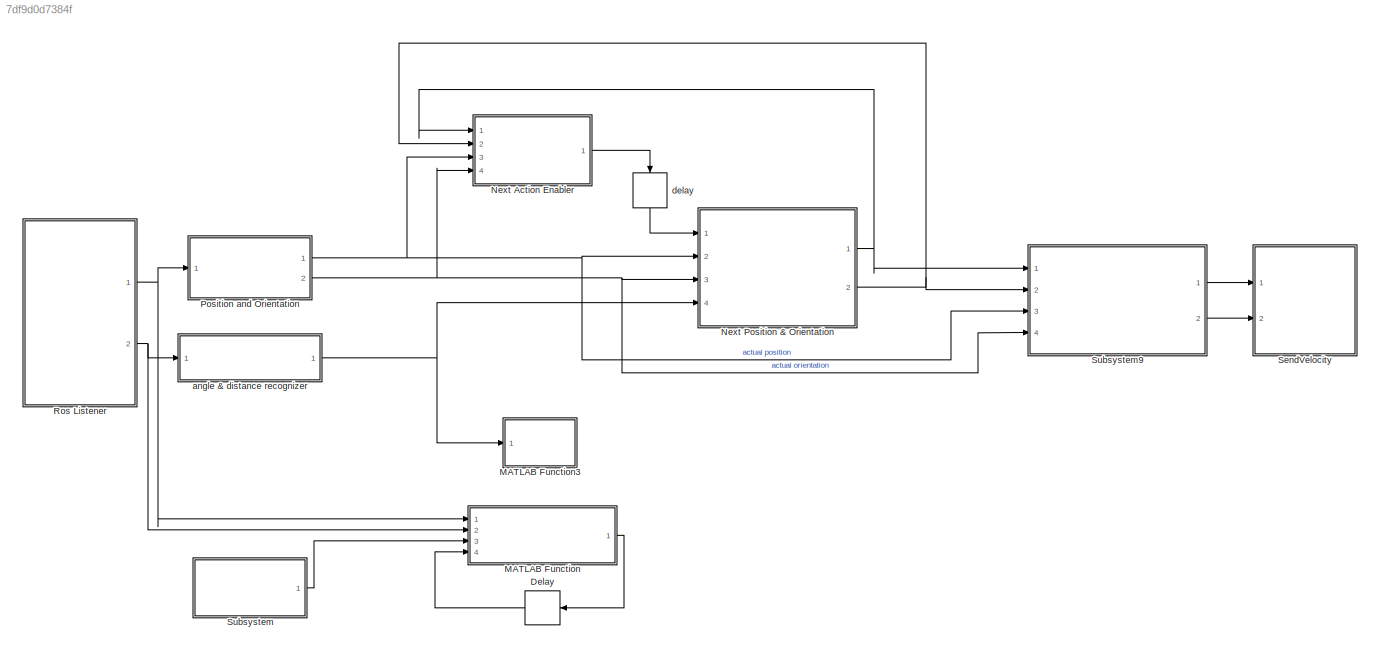
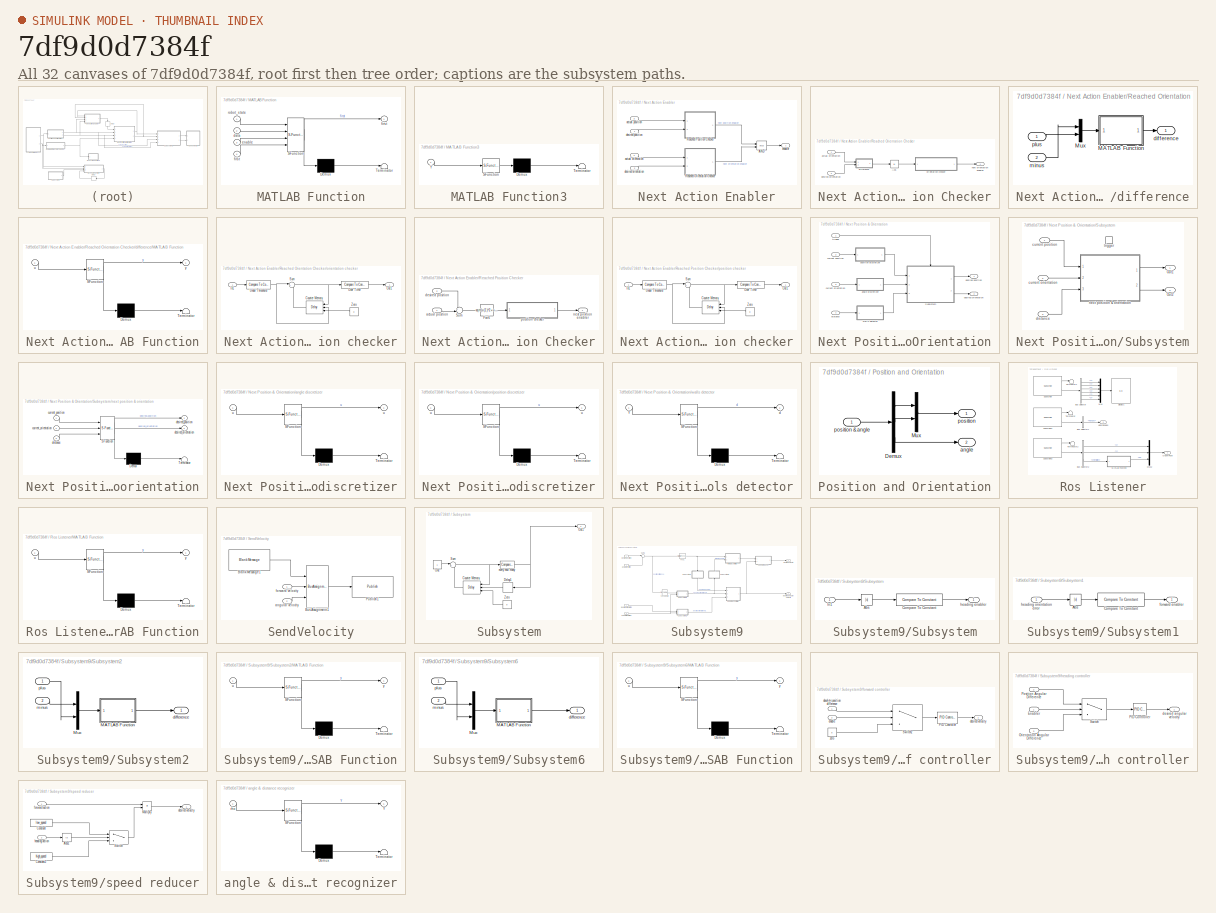
[diagram: thumbnail index - all 32 canvases of the model, root first then tree order]
MODEL slx_7df9d0d7384f
KIND model
CONFIG AbsTol = auto
CONFIG EnableMultiTasking = off
CONFIG FixedStep = 0.1
CONFIG MaxStep = auto
CONFIG MinStep = auto
CONFIG RelTol = 1e-3
CONFIG SampleTimeConstraint = Unconstrained
CONFIG Solver = FixedStepDiscrete
CONFIG SolverName = FixedStepDiscrete
CONFIG StartTime = 0.0
CONFIG StopTime = inf
WORKSPACE source: MAT-file member
WORKSPACE SL_ROS_VariableLengthArrays_MaxSizes: struct (value not decoded)
BLOCK [Delay] Delay
  DelayLength = 1
  InitialCondition = true
  InputPortMap = u0
  Ports = [1, 1]
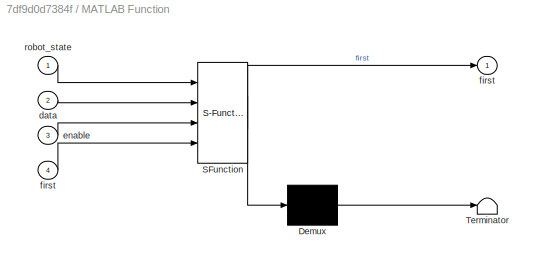
BLOCK [SubSystem] MATLAB Function
  ErrorFcn = Stateflow.Translate.translate
  PermitHierarchicalResolution = ExplicitOnly
  Ports = [4, 1]
  RequestExecContextInheritance = off
  SFBlockType = MATLAB Function
  TreatAsAtomicUnit = on
BLOCK [Demux] MATLAB Function/ Demux 
  Outputs = 1
  Ports = [1, 1]
BLOCK [S-Function] MATLAB Function/ SFunction 
  EnableBusSupport = on
  FunctionName = sf_sfun
  PortCounts = [4 2]
  Ports = [4, 2]
  SFcnIsStateOwnerBlock = off
  SFunctionDeploymentMode = off
  Tag = Stateflow S-Function teseo 2
BLOCK [Terminator] MATLAB Function/ Terminator 
BLOCK [Inport] MATLAB Function/data
  IconDisplay = Port number
  Port = 2
BLOCK [Inport] MATLAB Function/enable
  IconDisplay = Port number
  Port = 3
BLOCK [Outport] MATLAB Function/first
  IconDisplay = Port number
BLOCK [Inport] MATLAB Function/first 
  IconDisplay = Port number
  Port = 4
BLOCK [Inport] MATLAB Function/robot_state
  IconDisplay = Port number
BLOCK [SubSystem] MATLAB Function3
  Commented = on
  ErrorFcn = Stateflow.Translate.translate
  PermitHierarchicalResolution = ExplicitOnly
  Ports = [1]
  RequestExecContextInheritance = off
  SFBlockType = MATLAB Function
  TreatAsAtomicUnit = on
BLOCK [Demux] MATLAB Function3/ Demux 
  Outputs = 1
  Ports = [1, 1]
BLOCK [S-Function] MATLAB Function3/ SFunction 
  EnableBusSupport = on
  FunctionName = sf_sfun
  PortCounts = [1 1]
  Ports = [1, 1]
  SFcnIsStateOwnerBlock = off
  SFunctionDeploymentMode = off
  Tag = Stateflow S-Function teseo 9
BLOCK [Terminator] MATLAB Function3/ Terminator 
BLOCK [Inport] MATLAB Function3/Y
  IconDisplay = Port number
BLOCK [SubSystem] Next Action Enabler
  Ports = [4, 1]
  RequestExecContextInheritance = off
BLOCK [Logic] Next Action Enabler/AND
  AllPortsSameDT = off
  IconShape = distinctive
  OutDataTypeStr = boolean
  Ports = [2, 1]
BLOCK [SubSystem] Next Action Enabler/Reached Orientation Checker
  Ports = [2, 1]
  RequestExecContextInheritance = off
BLOCK [Abs] Next Action Enabler/Reached Orientation Checker/Abs
  SaturateOnIntegerOverflow = off
BLOCK [Inport] Next Action Enabler/Reached Orientation Checker/actual orientation
  IconDisplay = Port number
BLOCK [Inport] Next Action Enabler/Reached Orientation Checker/desired orientation
  IconDisplay = Port number
  Port = 2
BLOCK [SubSystem] Next Action Enabler/Reached Orientation Checker/difference
  Ports = [2, 1]
  RequestExecContextInheritance = off
BLOCK [SubSystem] Next Action Enabler/Reached Orientation Checker/difference/MATLAB Function
  ErrorFcn = Stateflow.Translate.translate
  PermitHierarchicalResolution = ExplicitOnly
  Ports = [1, 1]
  RequestExecContextInheritance = off
  SFBlockType = MATLAB Function
  TreatAsAtomicUnit = on
BLOCK [Demux] Next Action Enabler/Reached Orientation Checker/difference/MATLAB Function/ Demux 
  Outputs = 1
  Ports = [1, 1]
BLOCK [S-Function] Next Action Enabler/Reached Orientation Checker/difference/MATLAB Function/ SFunction 
  EnableBusSupport = on
  FunctionName = sf_sfun
  PortCounts = [1 2]
  Ports = [1, 2]
  SFcnIsStateOwnerBlock = off
  SFunctionDeploymentMode = off
  Tag = Stateflow S-Function teseo 10
BLOCK [Terminator] Next Action Enabler/Reached Orientation Checker/difference/MATLAB Function/ Terminator 
BLOCK [Inport] Next Action Enabler/Reached Orientation Checker/difference/MATLAB Function/u
  IconDisplay = Port number
BLOCK [Outport] Next Action Enabler/Reached Orientation Checker/difference/MATLAB Function/y
  IconDisplay = Port number
BLOCK [Mux] Next Action Enabler/Reached Orientation Checker/difference/Mux
  DisplayOption = bar
  Inputs = 2
  Ports = [2, 1]
BLOCK [Outport] Next Action Enabler/Reached Orientation Checker/difference/difference
  IconDisplay = Port number
BLOCK [Inport] Next Action Enabler/Reached Orientation Checker/difference/minus
  IconDisplay = Port number
  Port = 2
BLOCK [Inport] Next Action Enabler/Reached Orientation Checker/difference/plus 
  IconDisplay = Port number
BLOCK [Outport] Next Action Enabler/Reached Orientation Checker/next orientation enabler
  IconDisplay = Port number
BLOCK [SubSystem] Next Action Enabler/Reached Orientation Checker/orientation checker
  Ports = [1, 1]
  RequestExecContextInheritance = off
BLOCK [Delay] Next Action Enabler/Reached Orientation Checker/orientation checker/Counter Memory
  DelayLength = 1
  ExternalReset = Falling
  InitialConditionSource = Input port
  InputPortMap = u0,r5,p4
  Ports = [3, 1]
BLOCK [Inport] Next Action Enabler/Reached Orientation Checker/orientation checker/In1
  IconDisplay = Port number
BLOCK [Outport] Next Action Enabler/Reached Orientation Checker/orientation checker/Out1
  IconDisplay = Port number
BLOCK [Reference] Next Action Enabler/Reached Orientation Checker/orientation checker/Over Time  REF=simulink/Logic and Bit
Operations/Compare
To Constant
  Ports = [1, 1]
  SourceBlock = simulink/Logic and Bit\nOperations/Compare\nTo Constant
  SourceProductBaseCode = SL
  SourceProductName = Simulink
  SourceType = Compare To Constant
BLOCK [Sum] Next Action Enabler/Reached Orientation Checker/orientation checker/Sum
  IconShape = round
  InputSameDT = off
  Inputs = |++
  OutDataTypeStr = Inherit: Inherit via internal rule
  Ports = [2, 1]
  SaturateOnIntegerOverflow = off
BLOCK [Reference] Next Action Enabler/Reached Orientation Checker/orientation checker/Under Threshold  REF=simulink/Logic and Bit
Operations/Compare
To Constant
  Ports = [1, 1]
  SourceBlock = simulink/Logic and Bit\nOperations/Compare\nTo Constant
  SourceProductBaseCode = SL
  SourceProductName = Simulink
  SourceType = Compare To Constant
BLOCK [Constant] Next Action Enabler/Reached Orientation Checker/orientation checker/Zero
  Value = 0
BLOCK [SubSystem] Next Action Enabler/Reached Position Checker
  Ports = [2, 1]
  RequestExecContextInheritance = off
BLOCK [Fcn] Next Action Enabler/Reached Position Checker/Fcn6
  Expr = sqrt(u(1)^2+u(2)^2)
BLOCK [Sum] Next Action Enabler/Reached Position Checker/Sum
  IconShape = round
  InputSameDT = off
  Inputs = +-|
  OutDataTypeStr = Inherit: Inherit via internal rule
  Ports = [2, 1]
  SaturateOnIntegerOverflow = off
BLOCK [Inport] Next Action Enabler/Reached Position Checker/actual position
  IconDisplay = Port number
BLOCK [Inport] Next Action Enabler/Reached Position Checker/desired position
  IconDisplay = Port number
  Port = 2
BLOCK [Outport] Next Action Enabler/Reached Position Checker/next position enabler
  IconDisplay = Port number
BLOCK [SubSystem] Next Action Enabler/Reached Position Checker/position checker
  Ports = [1, 1]
  RequestExecContextInheritance = off
BLOCK [Delay] Next Action Enabler/Reached Position Checker/position checker/Counter Memory
  DelayLength = 1
  ExternalReset = Falling
  InitialConditionSource = Input port
  InputPortMap = u0,r5,p4
  Ports = [3, 1]
BLOCK [Inport] Next Action Enabler/Reached Position Checker/position checker/In1
  IconDisplay = Port number
BLOCK [Outport] Next Action Enabler/Reached Position Checker/position checker/Out1
  IconDisplay = Port number
BLOCK [Reference] Next Action Enabler/Reached Position Checker/position checker/Over Time  REF=simulink/Logic and Bit
Operations/Compare
To Constant
  Ports = [1, 1]
  SourceBlock = simulink/Logic and Bit\nOperations/Compare\nTo Constant
  SourceProductBaseCode = SL
  SourceProductName = Simulink
  SourceType = Compare To Constant
BLOCK [Sum] Next Action Enabler/Reached Position Checker/position checker/Sum
  IconShape = round
  InputSameDT = off
  Inputs = |++
  OutDataTypeStr = Inherit: Inherit via internal rule
  Ports = [2, 1]
  SaturateOnIntegerOverflow = off
BLOCK [Reference] Next Action Enabler/Reached Position Checker/position checker/Under Threshold  REF=simulink/Logic and Bit
Operations/Compare
To Constant
  Ports = [1, 1]
  SourceBlock = simulink/Logic and Bit\nOperations/Compare\nTo Constant
  SourceProductBaseCode = SL
  SourceProductName = Simulink
  SourceType = Compare To Constant
BLOCK [Constant] Next Action Enabler/Reached Position Checker/position checker/Zero
  Value = 0
BLOCK [Inport] Next Action Enabler/actual orientation
  IconDisplay = Port number
  Port = 4
BLOCK [Inport] Next Action Enabler/actual position
  IconDisplay = Port number
  Port = 3
BLOCK [Inport] Next Action Enabler/desired orientation
  IconDisplay = Port number
  Port = 2
BLOCK [Inport] Next Action Enabler/desired position
  IconDisplay = Port number
BLOCK [Outport] Next Action Enabler/enabler
  IconDisplay = Port number
BLOCK [SubSystem] Next Position & Orientation
  Ports = [4, 2]
  RequestExecContextInheritance = off
BLOCK [SubSystem] Next Position & Orientation/Subsystem
  Ports = [3, 2, 0, 1]
  RequestExecContextInheritance = off
BLOCK [Outport] Next Position & Orientation/Subsystem/Out1
  IconDisplay = Port number
BLOCK [Outport] Next Position & Orientation/Subsystem/Out2
  IconDisplay = Port number
  Port = 2
BLOCK [Inport] Next Position & Orientation/Subsystem/current orientation
  IconDisplay = Port number
  Port = 2
BLOCK [Inport] Next Position & Orientation/Subsystem/current position
  IconDisplay = Port number
BLOCK [Inport] Next Position & Orientation/Subsystem/distance
  IconDisplay = Port number
  Port = 3
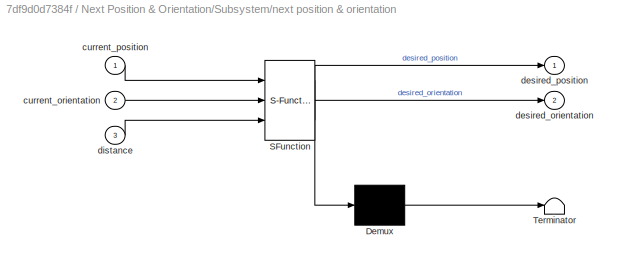
BLOCK [SubSystem] Next Position & Orientation/Subsystem/next position & orientation
  ErrorFcn = Stateflow.Translate.translate
  PermitHierarchicalResolution = ExplicitOnly
  Ports = [3, 2]
  RequestExecContextInheritance = off
  SFBlockType = MATLAB Function
  TreatAsAtomicUnit = on
BLOCK [Demux] Next Position & Orientation/Subsystem/next position & orientation/ Demux 
  Outputs = 1
  Ports = [1, 1]
BLOCK [S-Function] Next Position & Orientation/Subsystem/next position & orientation/ SFunction 
  EnableBusSupport = on
  FunctionName = sf_sfun
  Parameters = separation
  PortCounts = [3 3]
  Ports = [3, 3]
  SFcnIsStateOwnerBlock = off
  SFunctionDeploymentMode = off
  Tag = Stateflow S-Function teseo 4
BLOCK [Terminator] Next Position & Orientation/Subsystem/next position & orientation/ Terminator 
BLOCK [Inport] Next Position & Orientation/Subsystem/next position & orientation/current_orientation
  IconDisplay = Port number
  Port = 2
BLOCK [Inport] Next Position & Orientation/Subsystem/next position & orientation/current_position
  IconDisplay = Port number
BLOCK [Outport] Next Position & Orientation/Subsystem/next position & orientation/desired_orientation
  IconDisplay = Port number
  Port = 2
BLOCK [Outport] Next Position & Orientation/Subsystem/next position & orientation/desired_position
  IconDisplay = Port number
BLOCK [Inport] Next Position & Orientation/Subsystem/next position & orientation/distance
  IconDisplay = Port number
  Port = 3
BLOCK [TriggerPort] Next Position & Orientation/Subsystem/trigger
  InitialTriggerSignalState = zero
  PortDimensions = 1
  Ports = []
  StatesWhenEnabling = held
  VariantControl = Variant
BLOCK [SubSystem] Next Position & Orientation/angle discretizer
  ErrorFcn = Stateflow.Translate.translate
  PermitHierarchicalResolution = ExplicitOnly
  Ports = [1, 1]
  RequestExecContextInheritance = off
  SFBlockType = MATLAB Function
  TreatAsAtomicUnit = on
BLOCK [Demux] Next Position & Orientation/angle discretizer/ Demux 
  Outputs = 1
  Ports = [1, 1]
BLOCK [S-Function] Next Position & Orientation/angle discretizer/ SFunction 
  EnableBusSupport = on
  FunctionName = sf_sfun
  PortCounts = [1 2]
  Ports = [1, 2]
  SFcnIsStateOwnerBlock = off
  SFunctionDeploymentMode = off
  Tag = Stateflow S-Function teseo 12
BLOCK [Terminator] Next Position & Orientation/angle discretizer/ Terminator 
BLOCK [Outport] Next Position & Orientation/angle discretizer/u
  IconDisplay = Port number
BLOCK [Inport] Next Position & Orientation/angle discretizer/u 
  IconDisplay = Port number
BLOCK [Inport] Next Position & Orientation/current orientation
  IconDisplay = Port number
  Port = 3
BLOCK [Inport] Next Position & Orientation/current position
  IconDisplay = Port number
  Port = 2
BLOCK [Outport] Next Position & Orientation/desired orientation
  IconDisplay = Port number
  Port = 2
BLOCK [Outport] Next Position & Orientation/desired position
  IconDisplay = Port number
BLOCK [Inport] Next Position & Orientation/distance
  IconDisplay = Port number
  Port = 4
BLOCK [SubSystem] Next Position & Orientation/position discretizer
  ErrorFcn = Stateflow.Translate.translate
  PermitHierarchicalResolution = ExplicitOnly
  Ports = [1, 1]
  RequestExecContextInheritance = off
  SFBlockType = MATLAB Function
  TreatAsAtomicUnit = on
BLOCK [Demux] Next Position & Orientation/position discretizer/ Demux 
  Outputs = 1
  Ports = [1, 1]
BLOCK [S-Function] Next Position & Orientation/position discretizer/ SFunction 
  EnableBusSupport = on
  FunctionName = sf_sfun
  Parameters = offset,width
  PortCounts = [1 2]
  Ports = [1, 2]
  SFcnIsStateOwnerBlock = off
  SFunctionDeploymentMode = off
  Tag = Stateflow S-Function teseo 11
BLOCK [Terminator] Next Position & Orientation/position discretizer/ Terminator 
BLOCK [Outport] Next Position & Orientation/position discretizer/u
  IconDisplay = Port number
BLOCK [Inport] Next Position & Orientation/position discretizer/u 
  IconDisplay = Port number
BLOCK [Inport] Next Position & Orientation/trigger
  IconDisplay = Port number
BLOCK [SubSystem] Next Position & Orientation/walls detector
  ErrorFcn = Stateflow.Translate.translate
  PermitHierarchicalResolution = ExplicitOnly
  Ports = [1, 1]
  RequestExecContextInheritance = off
  SFBlockType = MATLAB Function
  TreatAsAtomicUnit = on
BLOCK [Demux] Next Position & Orientation/walls detector/ Demux 
  Outputs = 1
  Ports = [1, 1]
BLOCK [S-Function] Next Position & Orientation/walls detector/ SFunction 
  EnableBusSupport = on
  FunctionName = sf_sfun
  Parameters = w
  PortCounts = [1 2]
  Ports = [1, 2]
  SFcnIsStateOwnerBlock = off
  SFunctionDeploymentMode = off
  Tag = Stateflow S-Function teseo 8
BLOCK [Terminator] Next Position & Orientation/walls detector/ Terminator 
BLOCK [Inport] Next Position & Orientation/walls detector/Y
  IconDisplay = Port number
BLOCK [Outport] Next Position & Orientation/walls detector/d
  IconDisplay = Port number
BLOCK [SubSystem] Position and Orientation
  Ports = [1, 2]
  RequestExecContextInheritance = off
BLOCK [Demux] Position and Orientation/Demux
  DisplayOption = bar
  Outputs = 3
  Ports = [1, 3]
BLOCK [Mux] Position and Orientation/Mux
  DisplayOption = bar
  Inputs = 2
  Ports = [2, 1]
BLOCK [Outport] Position and Orientation/angle
  IconDisplay = Port number
  Port = 2
BLOCK [Outport] Position and Orientation/position
  IconDisplay = Port number
BLOCK [Inport] Position and Orientation/position & angle
  IconDisplay = Port number
BLOCK [SubSystem] Ros Listener
  Ports = [0, 2]
  RequestExecContextInheritance = off
BLOCK [BusSelector] Ros Listener/Bus Selector
  OutputAsBus = off
  OutputSignals = Linear.X,Linear.Y,Linear.Z,Angular.X,Angular.Y,Angular.Z
  Ports = [1, 6]
BLOCK [BusSelector] Ros Listener/Bus Selector1
  OutputAsBus = off
  OutputSignals = Ranges
  Ports = [1, 1]
BLOCK [BusSelector] Ros Listener/Bus Selector2
  OutputAsBus = off
  OutputSignals = Pose.Pose.Position.X,Pose.Pose.Position.Y,Pose.Pose.Orientation
  Ports = [1, 3]
BLOCK [Display] Ros Listener/Display1
  Decimation = 1
  Ports = [1]
BLOCK [Outport] Ros Listener/LidarRanges
  IconDisplay = Port number
  Port = 2
BLOCK [SubSystem] Ros Listener/MATLAB Function
  ErrorFcn = Stateflow.Translate.translate
  PermitHierarchicalResolution = ExplicitOnly
  Ports = [1, 1]
  RequestExecContextInheritance = off
  SFBlockType = MATLAB Function
  TreatAsAtomicUnit = on
BLOCK [Demux] Ros Listener/MATLAB Function/ Demux 
  Outputs = 1
  Ports = [1, 1]
BLOCK [S-Function] Ros Listener/MATLAB Function/ SFunction 
  EnableBusSupport = on
  FunctionName = sf_sfun
  PortCounts = [1 2]
  Ports = [1, 2]
  SFcnIsStateOwnerBlock = off
  SFunctionDeploymentMode = off
  Tag = Stateflow S-Function teseo 5
BLOCK [Terminator] Ros Listener/MATLAB Function/ Terminator 
BLOCK [Inport] Ros Listener/MATLAB Function/u
  IconDisplay = Port number
BLOCK [Outport] Ros Listener/MATLAB Function/y
  IconDisplay = Port number
BLOCK [Mux] Ros Listener/Mux
  DisplayOption = bar
  Inputs = 6
  Ports = [6, 1]
BLOCK [Mux] Ros Listener/Mux2
  DisplayOption = bar
  Inputs = 3
  Ports = [3, 1]
BLOCK [Outport] Ros Listener/OdomPose
  IconDisplay = Port number
BLOCK [Reference] Ros Listener/Subscribe  REF=robotlib/Subscribe
  Ports = [0, 2]
  SourceBlock = robotlib/Subscribe
  SourceLibraryInfo = This block requires Robotics System Toolbox
  SourceProductBaseCode = RO
  SourceProductName = Robotics System Toolbox
  SourceType = ROS Subscribe
BLOCK [Reference] Ros Listener/Subscribe1  REF=robotlib/Subscribe
  Ports = [0, 2]
  SourceBlock = robotlib/Subscribe
  SourceLibraryInfo = This block requires Robotics System Toolbox
  SourceProductBaseCode = RO
  SourceProductName = Robotics System Toolbox
  SourceType = ROS Subscribe
BLOCK [Reference] Ros Listener/Subscribe2  REF=robotlib/Subscribe
  Ports = [0, 2]
  SourceBlock = robotlib/Subscribe
  SourceLibraryInfo = This block requires Robotics System Toolbox
  SourceProductBaseCode = RO
  SourceProductName = Robotics System Toolbox
  SourceType = ROS Subscribe
BLOCK [Terminator] Ros Listener/Terminator
BLOCK [Terminator] Ros Listener/Terminator1
BLOCK [Terminator] Ros Listener/Terminator2
BLOCK [SubSystem] SendVelocity
  Ports = [2]
  RequestExecContextInheritance = off
BLOCK [Reference] SendVelocity/Blank Message1  REF=robotlib/Blank Message
  Ports = [0, 1]
  SourceBlock = robotlib/Blank Message
  SourceLibraryInfo = This block requires Robotics System Toolbox
  SourceProductBaseCode = RO
  SourceProductName = Robotics System Toolbox
  SourceType = ROS Blank Message
BLOCK [BusAssignment] SendVelocity/Bus Assignment1
  AssignedSignals = Linear.X,Angular.Z
  Ports = [3, 1]
BLOCK [Reference] SendVelocity/Publish1  REF=robotlib/Publish
  Ports = [1]
  SourceBlock = robotlib/Publish
  SourceLibraryInfo = This block requires Robotics System Toolbox
  SourceProductBaseCode = RO
  SourceProductName = Robotics System Toolbox
  SourceType = ROS Publish
BLOCK [Inport] SendVelocity/angular velocity
  IconDisplay = Port number
  Port = 2
BLOCK [Inport] SendVelocity/forward velocity
  IconDisplay = Port number
BLOCK [SubSystem] Subsystem
  Ports = [0, 1]
  RequestExecContextInheritance = off
BLOCK [Delay] Subsystem/Counter Memory
  DelayLength = 1
  ExternalReset = Rising
  InitialConditionSource = Input port
  InputPortMap = u0,r5,p4
  Ports = [3, 1]
BLOCK [Delay] Subsystem/Delay1
  DelayLength = 1
  InitialCondition = false
  InputPortMap = u0
  Ports = [1, 1]
BLOCK [Constant] Subsystem/One
BLOCK [Outport] Subsystem/Out1
  IconDisplay = Port number
BLOCK [Sum] Subsystem/Sum
  IconShape = round
  InputSameDT = off
  Inputs = |++
  OutDataTypeStr = Inherit: Inherit via internal rule
  Ports = [2, 1]
  SaturateOnIntegerOverflow = off
BLOCK [Constant] Subsystem/Zero
  Value = 0
BLOCK [Reference] Subsystem/every how many  REF=simulink/Logic and Bit
Operations/Compare
To Constant
  Ports = [1, 1]
  SourceBlock = simulink/Logic and Bit\nOperations/Compare\nTo Constant
  SourceProductBaseCode = SL
  SourceProductName = Simulink
  SourceType = Compare To Constant
BLOCK [SubSystem] Subsystem9
  Ports = [4, 2]
  RequestExecContextInheritance = off
BLOCK [Fcn] Subsystem9/Fcn1
  Expr = sqrt(u(1)^2+u(2)^2)
BLOCK [SubSystem] Subsystem9/Subsystem
  Ports = [1, 1]
  RequestExecContextInheritance = off
BLOCK [Abs] Subsystem9/Subsystem/Abs
  SaturateOnIntegerOverflow = off
BLOCK [Reference] Subsystem9/Subsystem/Compare To Constant  REF=simulink/Logic and Bit
Operations/Compare
To Constant
  Ports = [1, 1]
  SourceBlock = simulink/Logic and Bit\nOperations/Compare\nTo Constant
  SourceProductBaseCode = SL
  SourceProductName = Simulink
  SourceType = Compare To Constant
BLOCK [Inport] Subsystem9/Subsystem/In1
  IconDisplay = Port number
BLOCK [Outport] Subsystem9/Subsystem/heading enabler
  IconDisplay = Port number
BLOCK [SubSystem] Subsystem9/Subsystem1
  Ports = [1, 1]
  RequestExecContextInheritance = off
BLOCK [Abs] Subsystem9/Subsystem1/Abs
  SaturateOnIntegerOverflow = off
BLOCK [Reference] Subsystem9/Subsystem1/Compare To Constant  REF=simulink/Logic and Bit
Operations/Compare
To Constant
  Ports = [1, 1]
  SourceBlock = simulink/Logic and Bit\nOperations/Compare\nTo Constant
  SourceProductBaseCode = SL
  SourceProductName = Simulink
  SourceType = Compare To Constant
BLOCK [Outport] Subsystem9/Subsystem1/forward enabler
  IconDisplay = Port number
BLOCK [Inport] Subsystem9/Subsystem1/heading orientation error
  IconDisplay = Port number
BLOCK [SubSystem] Subsystem9/Subsystem2
  Ports = [2, 1]
  RequestExecContextInheritance = off
BLOCK [SubSystem] Subsystem9/Subsystem2/MATLAB Function
  ErrorFcn = Stateflow.Translate.translate
  PermitHierarchicalResolution = ExplicitOnly
  Ports = [1, 1]
  RequestExecContextInheritance = off
  SFBlockType = MATLAB Function
  TreatAsAtomicUnit = on
BLOCK [Demux] Subsystem9/Subsystem2/MATLAB Function/ Demux 
  Outputs = 1
  Ports = [1, 1]
BLOCK [S-Function] Subsystem9/Subsystem2/MATLAB Function/ SFunction 
  EnableBusSupport = on
  FunctionName = sf_sfun
  PortCounts = [1 2]
  Ports = [1, 2]
  SFcnIsStateOwnerBlock = off
  SFunctionDeploymentMode = off
  Tag = Stateflow S-Function teseo 1
BLOCK [Terminator] Subsystem9/Subsystem2/MATLAB Function/ Terminator 
BLOCK [Inport] Subsystem9/Subsystem2/MATLAB Function/u
  IconDisplay = Port number
BLOCK [Outport] Subsystem9/Subsystem2/MATLAB Function/y
  IconDisplay = Port number
BLOCK [Mux] Subsystem9/Subsystem2/Mux
  DisplayOption = bar
  Inputs = 2
  Ports = [2, 1]
BLOCK [Outport] Subsystem9/Subsystem2/difference
  IconDisplay = Port number
BLOCK [Inport] Subsystem9/Subsystem2/minus
  IconDisplay = Port number
  Port = 2
BLOCK [Inport] Subsystem9/Subsystem2/plus 
  IconDisplay = Port number
BLOCK [SubSystem] Subsystem9/Subsystem6
  Ports = [2, 1]
  RequestExecContextInheritance = off
BLOCK [SubSystem] Subsystem9/Subsystem6/MATLAB Function
  ErrorFcn = Stateflow.Translate.translate
  PermitHierarchicalResolution = ExplicitOnly
  Ports = [1, 1]
  RequestExecContextInheritance = off
  SFBlockType = MATLAB Function
  TreatAsAtomicUnit = on
BLOCK [Demux] Subsystem9/Subsystem6/MATLAB Function/ Demux 
  Outputs = 1
  Ports = [1, 1]
BLOCK [S-Function] Subsystem9/Subsystem6/MATLAB Function/ SFunction 
  EnableBusSupport = on
  FunctionName = sf_sfun
  PortCounts = [1 2]
  Ports = [1, 2]
  SFcnIsStateOwnerBlock = off
  SFunctionDeploymentMode = off
  Tag = Stateflow S-Function teseo 13
BLOCK [Terminator] Subsystem9/Subsystem6/MATLAB Function/ Terminator 
BLOCK [Inport] Subsystem9/Subsystem6/MATLAB Function/u
  IconDisplay = Port number
BLOCK [Outport] Subsystem9/Subsystem6/MATLAB Function/y
  IconDisplay = Port number
BLOCK [Mux] Subsystem9/Subsystem6/Mux
  DisplayOption = bar
  Inputs = 2
  Ports = [2, 1]
BLOCK [Outport] Subsystem9/Subsystem6/difference
  IconDisplay = Port number
BLOCK [Inport] Subsystem9/Subsystem6/minus
  IconDisplay = Port number
  Port = 2
BLOCK [Inport] Subsystem9/Subsystem6/plus 
  IconDisplay = Port number
BLOCK [Sum] Subsystem9/Sum1
  IconShape = round
  InputSameDT = off
  Inputs = |+-
  OutDataTypeStr = Inherit: Inherit via internal rule
  Ports = [2, 1]
  SaturateOnIntegerOverflow = off
BLOCK [Inport] Subsystem9/actual orientation
  IconDisplay = Port number
  Port = 4
BLOCK [Inport] Subsystem9/actual position
  IconDisplay = Port number
  Port = 3
BLOCK [Outport] Subsystem9/desired angular velocity
  IconDisplay = Port number
  Port = 2
BLOCK [Inport] Subsystem9/desired orientation
  IconDisplay = Port number
  Port = 2
BLOCK [Inport] Subsystem9/desired position
  IconDisplay = Port number
BLOCK [Outport] Subsystem9/desired velocity
  IconDisplay = Port number
BLOCK [SubSystem] Subsystem9/forward controller
  Ports = [2, 1]
  RequestExecContextInheritance = off
BLOCK [Reference] Subsystem9/forward controller/PID Controller  REF=simulink/Continuous/PID Controller
  Ports = [1, 1]
  SourceBlock = simulink/Continuous/PID Controller
  SourceProductBaseCode = SL
  SourceProductName = Simulink
  SourceType = PID 1dof
BLOCK [Switch] Subsystem9/forward controller/Switch2
  InputSameDT = off
  SaturateOnIntegerOverflow = off
BLOCK [Inport] Subsystem9/forward controller/absolute position difference
  IconDisplay = Port number
BLOCK [Outport] Subsystem9/forward controller/desired velocity
  IconDisplay = Port number
BLOCK [Inport] Subsystem9/forward controller/enable
  IconDisplay = Port number
  Port = 2
BLOCK [Constant] Subsystem9/forward controller/zero
  Value = 0
BLOCK [SubSystem] Subsystem9/heading controller
  Ports = [3, 1]
  RequestExecContextInheritance = off
BLOCK [Inport] Subsystem9/heading controller/Enabler
  IconDisplay = Port number
BLOCK [Inport] Subsystem9/heading controller/Orientation Angular Difference
  IconDisplay = Port number
  Port = 3
BLOCK [Reference] Subsystem9/heading controller/PID Controller  REF=simulink/Continuous/PID Controller
  Ports = [1, 1]
  SourceBlock = simulink/Continuous/PID Controller
  SourceProductBaseCode = SL
  SourceProductName = Simulink
  SourceType = PID 1dof
BLOCK [Inport] Subsystem9/heading controller/Position Angular Difference
  IconDisplay = Port number
  Port = 2
BLOCK [Switch] Subsystem9/heading controller/Switch
  InputSameDT = off
  SaturateOnIntegerOverflow = off
BLOCK [Outport] Subsystem9/heading controller/desired angular velocity
  IconDisplay = Port number
BLOCK [SubSystem] Subsystem9/speed reducer
  Ports = [2, 1]
  RequestExecContextInheritance = off
BLOCK [Abs] Subsystem9/speed reducer/Abs1
  SaturateOnIntegerOverflow = off
BLOCK [Constant] Subsystem9/speed reducer/Constant
  Value = low_speed
BLOCK [Constant] Subsystem9/speed reducer/Constant2
  Value = high_speed
BLOCK [Product] Subsystem9/speed reducer/Multiply
  InputSameDT = off
  OutDataTypeStr = Inherit: Inherit via internal rule
  Ports = [2, 1]
  RndMeth = Floor
  SaturateOnIntegerOverflow = off
BLOCK [Switch] Subsystem9/speed reducer/Switch
  Criteria = u2 > Threshold
  InputSameDT = off
  SaturateOnIntegerOverflow = off
  Threshold = speed_red_threshold
BLOCK [Outport] Subsystem9/speed reducer/desired velocity
  IconDisplay = Port number
BLOCK [Inport] Subsystem9/speed reducer/forward action
  IconDisplay = Port number
BLOCK [Inport] Subsystem9/speed reducer/heading action
  IconDisplay = Port number
  Port = 2
BLOCK [Fcn] Subsystem9/vec2angle
  Expr = atan2(u(2),u(1))
BLOCK [SubSystem] angle & distance recognizer
  ErrorFcn = Stateflow.Translate.translate
  PermitHierarchicalResolution = ExplicitOnly
  Ports = [1, 1]
  RequestExecContextInheritance = off
  SFBlockType = MATLAB Function
  TreatAsAtomicUnit = on
BLOCK [Demux] angle & distance recognizer/ Demux 
  Outputs = 1
  Ports = [1, 1]
BLOCK [S-Function] angle & distance recognizer/ SFunction 
  EnableBusSupport = on
  FunctionName = sf_sfun
  PortCounts = [1 2]
  Ports = [1, 2]
  SFcnIsStateOwnerBlock = off
  SFunctionDeploymentMode = off
  Tag = Stateflow S-Function teseo 7
BLOCK [Terminator] angle & distance recognizer/ Terminator 
BLOCK [Outport] angle & distance recognizer/Y
  IconDisplay = Port number
BLOCK [Inport] angle & distance recognizer/rho
  IconDisplay = Port number
BLOCK [Delay] delay
  DelayLength = 1
  InitialCondition = 1
  InputPortMap = u0
  Ports = [1, 1]
LINE Delay:1 -> MATLAB Function:4
LINE MATLAB Function:1 -> Delay:1
LINE Next Action Enabler/AND:1 -> Next Action Enabler/enabler:1
LINE Next Action Enabler/Reached Orientation Checker/Abs:1 -> Next Action Enabler/Reached Orientation Checker/orientation checker:1
LINE Next Action Enabler/Reached Orientation Checker/actual orientation:1 -> Next Action Enabler/Reached Orientation Checker/difference:1
LINE Next Action Enabler/Reached Orientation Checker/desired orientation:1 -> Next Action Enabler/Reached Orientation Checker/difference:2
LINE Next Action Enabler/Reached Orientation Checker/difference/MATLAB Function:1 -> Next Action Enabler/Reached Orientation Checker/difference/difference:1
LINE Next Action Enabler/Reached Orientation Checker/difference/Mux:1 -> Next Action Enabler/Reached Orientation Checker/difference/MATLAB Function:1
LINE Next Action Enabler/Reached Orientation Checker/difference/minus:1 -> Next Action Enabler/Reached Orientation Checker/difference/Mux:1
LINE Next Action Enabler/Reached Orientation Checker/difference/plus :1 -> Next Action Enabler/Reached Orientation Checker/difference/Mux:2
LINE Next Action Enabler/Reached Orientation Checker/difference:1 -> Next Action Enabler/Reached Orientation Checker/Abs:1
LINE Next Action Enabler/Reached Orientation Checker/orientation checker/Counter Memory:1 -> Next Action Enabler/Reached Orientation Checker/orientation checker/Sum:2
LINE Next Action Enabler/Reached Orientation Checker/orientation checker/In1:1 -> Next Action Enabler/Reached Orientation Checker/orientation checker/Under Threshold:1
LINE Next Action Enabler/Reached Orientation Checker/orientation checker/Over Time:1 -> Next Action Enabler/Reached Orientation Checker/orientation checker/Out1:1
NET Next Action Enabler/Reached Orientation Checker/orientation checker/Sum:1 -> Next Action Enabler/Reached Orientation Checker/orientation checker/Counter Memory:1, Next Action Enabler/Reached Orientation Checker/orientation checker/Over Time:1
NET Next Action Enabler/Reached Orientation Checker/orientation checker/Under Threshold:1 -> Next Action Enabler/Reached Orientation Checker/orientation checker/Counter Memory:2, Next Action Enabler/Reached Orientation Checker/orientation checker/Sum:1
LINE Next Action Enabler/Reached Orientation Checker/orientation checker/Zero:1 -> Next Action Enabler/Reached Orientation Checker/orientation checker/Counter Memory:3
LINE Next Action Enabler/Reached Orientation Checker/orientation checker:1 -> Next Action Enabler/Reached Orientation Checker/next orientation enabler:1
LINE Next Action Enabler/Reached Orientation Checker:1 -> Next Action Enabler/AND:2
LINE Next Action Enabler/Reached Position Checker/Fcn6:1 -> Next Action Enabler/Reached Position Checker/position checker:1
LINE Next Action Enabler/Reached Position Checker/Sum:1 -> Next Action Enabler/Reached Position Checker/Fcn6:1
LINE Next Action Enabler/Reached Position Checker/actual position:1 -> Next Action Enabler/Reached Position Checker/Sum:2
LINE Next Action Enabler/Reached Position Checker/desired position:1 -> Next Action Enabler/Reached Position Checker/Sum:1
LINE Next Action Enabler/Reached Position Checker/position checker/Counter Memory:1 -> Next Action Enabler/Reached Position Checker/position checker/Sum:2
LINE Next Action Enabler/Reached Position Checker/position checker/In1:1 -> Next Action Enabler/Reached Position Checker/position checker/Under Threshold:1
LINE Next Action Enabler/Reached Position Checker/position checker/Over Time:1 -> Next Action Enabler/Reached Position Checker/position checker/Out1:1
NET Next Action Enabler/Reached Position Checker/position checker/Sum:1 -> Next Action Enabler/Reached Position Checker/position checker/Counter Memory:1, Next Action Enabler/Reached Position Checker/position checker/Over Time:1
NET Next Action Enabler/Reached Position Checker/position checker/Under Threshold:1 -> Next Action Enabler/Reached Position Checker/position checker/Counter Memory:2, Next Action Enabler/Reached Position Checker/position checker/Sum:1
LINE Next Action Enabler/Reached Position Checker/position checker/Zero:1 -> Next Action Enabler/Reached Position Checker/position checker/Counter Memory:3
LINE Next Action Enabler/Reached Position Checker/position checker:1 -> Next Action Enabler/Reached Position Checker/next position enabler:1
LINE Next Action Enabler/Reached Position Checker:1 -> Next Action Enabler/AND:1
LINE Next Action Enabler/actual orientation:1 -> Next Action Enabler/Reached Orientation Checker:1
LINE Next Action Enabler/actual position:1 -> Next Action Enabler/Reached Position Checker:1
LINE Next Action Enabler/desired orientation:1 -> Next Action Enabler/Reached Orientation Checker:2
LINE Next Action Enabler/desired position:1 -> Next Action Enabler/Reached Position Checker:2
LINE Next Action Enabler:1 -> delay:1
LINE Next Position & Orientation/Subsystem/current orientation:1 -> Next Position & Orientation/Subsystem/next position & orientation:2
LINE Next Position & Orientation/Subsystem/current position:1 -> Next Position & Orientation/Subsystem/next position & orientation:1
LINE Next Position & Orientation/Subsystem/distance:1 -> Next Position & Orientation/Subsystem/next position & orientation:3
LINE Next Position & Orientation/Subsystem/next position & orientation:1 -> Next Position & Orientation/Subsystem/Out1:1
LINE Next Position & Orientation/Subsystem/next position & orientation:2 -> Next Position & Orientation/Subsystem/Out2:1
LINE Next Position & Orientation/Subsystem:1 -> Next Position & Orientation/desired position:1
LINE Next Position & Orientation/Subsystem:2 -> Next Position & Orientation/desired orientation:1
LINE Next Position & Orientation/angle discretizer:1 -> Next Position & Orientation/Subsystem:2
LINE Next Position & Orientation/current orientation:1 -> Next Position & Orientation/angle discretizer:1
LINE Next Position & Orientation/current position:1 -> Next Position & Orientation/position discretizer:1
LINE Next Position & Orientation/distance:1 -> Next Position & Orientation/walls detector:1
LINE Next Position & Orientation/position discretizer:1 -> Next Position & Orientation/Subsystem:1
LINE Next Position & Orientation/trigger:1 -> Next Position & Orientation/Subsystem:trigger
LINE Next Position & Orientation/walls detector:1 -> Next Position & Orientation/Subsystem:3
NET Next Position & Orientation:1 -> Next Action Enabler:1, Subsystem9:1
NET Next Position & Orientation:2 -> Next Action Enabler:2, Subsystem9:2
LINE Position and Orientation/Demux:1 -> Position and Orientation/Mux:1
LINE Position and Orientation/Demux:2 -> Position and Orientation/Mux:2
LINE Position and Orientation/Demux:3 -> Position and Orientation/angle:1
LINE Position and Orientation/Mux:1 -> Position and Orientation/position:1
LINE Position and Orientation/position & angle:1 -> Position and Orientation/Demux:1
NET Position and Orientation:1 -> Next Action Enabler:3, Next Position & Orientation:2, Subsystem9:3
NET Position and Orientation:2 -> Next Action Enabler:4, Next Position & Orientation:3, Subsystem9:4
LINE Ros Listener/Bus Selector1:1 -> Ros Listener/LidarRanges:1
LINE Ros Listener/Bus Selector2:1 -> Ros Listener/Mux2:1
LINE Ros Listener/Bus Selector2:2 -> Ros Listener/Mux2:2
LINE Ros Listener/Bus Selector2:3 -> Ros Listener/MATLAB Function:1
LINE Ros Listener/Bus Selector:1 -> Ros Listener/Mux:1
LINE Ros Listener/Bus Selector:2 -> Ros Listener/Mux:2
LINE Ros Listener/Bus Selector:3 -> Ros Listener/Mux:3
LINE Ros Listener/Bus Selector:4 -> Ros Listener/Mux:4
LINE Ros Listener/Bus Selector:5 -> Ros Listener/Mux:5
LINE Ros Listener/Bus Selector:6 -> Ros Listener/Mux:6
LINE Ros Listener/MATLAB Function:1 -> Ros Listener/Mux2:3
LINE Ros Listener/Mux2:1 -> Ros Listener/OdomPose:1
LINE Ros Listener/Mux:1 -> Ros Listener/Display1:1
LINE Ros Listener/Subscribe1:1 -> Ros Listener/Terminator:1
LINE Ros Listener/Subscribe1:2 -> Ros Listener/Bus Selector1:1
LINE Ros Listener/Subscribe2:1 -> Ros Listener/Terminator2:1
LINE Ros Listener/Subscribe2:2 -> Ros Listener/Bus Selector2:1
LINE Ros Listener/Subscribe:1 -> Ros Listener/Terminator1:1
LINE Ros Listener/Subscribe:2 -> Ros Listener/Bus Selector:1
NET Ros Listener:1 -> MATLAB Function:1, Position and Orientation:1
NET Ros Listener:2 -> MATLAB Function:2, angle & distance recognizer:1
LINE SendVelocity/Blank Message1:1 -> SendVelocity/Bus Assignment1:1
LINE SendVelocity/Bus Assignment1:1 -> SendVelocity/Publish1:1
LINE SendVelocity/angular velocity:1 -> SendVelocity/Bus Assignment1:3
LINE SendVelocity/forward velocity:1 -> SendVelocity/Bus Assignment1:2
LINE Subsystem/Counter Memory:1 -> Subsystem/Sum:2
LINE Subsystem/Delay1:1 -> Subsystem/Counter Memory:2
LINE Subsystem/One:1 -> Subsystem/Sum:1
NET Subsystem/Sum:1 -> Subsystem/Counter Memory:1, Subsystem/every how many:1
LINE Subsystem/Zero:1 -> Subsystem/Counter Memory:3
NET Subsystem/every how many:1 -> Subsystem/Delay1:1, Subsystem/Out1:1
NET Subsystem9/Fcn1:1 -> Subsystem9/Subsystem:1, Subsystem9/forward controller:1
LINE Subsystem9/Subsystem/Abs:1 -> Subsystem9/Subsystem/Compare To Constant:1
LINE Subsystem9/Subsystem/Compare To Constant:1 -> Subsystem9/Subsystem/heading enabler:1
LINE Subsystem9/Subsystem/In1:1 -> Subsystem9/Subsystem/Abs:1
LINE Subsystem9/Subsystem1/Abs:1 -> Subsystem9/Subsystem1/Compare To Constant:1
LINE Subsystem9/Subsystem1/Compare To Constant:1 -> Subsystem9/Subsystem1/forward enabler:1
LINE Subsystem9/Subsystem1/heading orientation error:1 -> Subsystem9/Subsystem1/Abs:1
LINE Subsystem9/Subsystem1:1 -> Subsystem9/forward controller:2
LINE Subsystem9/Subsystem2/MATLAB Function:1 -> Subsystem9/Subsystem2/difference:1
LINE Subsystem9/Subsystem2/Mux:1 -> Subsystem9/Subsystem2/MATLAB Function:1
LINE Subsystem9/Subsystem2/minus:1 -> Subsystem9/Subsystem2/Mux:1
LINE Subsystem9/Subsystem2/plus :1 -> Subsystem9/Subsystem2/Mux:2
LINE Subsystem9/Subsystem2:1 -> Subsystem9/heading controller:3
LINE Subsystem9/Subsystem6/MATLAB Function:1 -> Subsystem9/Subsystem6/difference:1
LINE Subsystem9/Subsystem6/Mux:1 -> Subsystem9/Subsystem6/MATLAB Function:1
LINE Subsystem9/Subsystem6/minus:1 -> Subsystem9/Subsystem6/Mux:1
LINE Subsystem9/Subsystem6/plus :1 -> Subsystem9/Subsystem6/Mux:2
NET Subsystem9/Subsystem6:1 -> Subsystem9/Subsystem1:1, Subsystem9/heading controller:2
LINE Subsystem9/Subsystem:1 -> Subsystem9/heading controller:1
NET Subsystem9/Sum1:1 -> Subsystem9/Fcn1:1, Subsystem9/vec2angle:1
NET Subsystem9/actual orientation:1 -> Subsystem9/Subsystem2:2, Subsystem9/Subsystem6:2
LINE Subsystem9/actual position:1 -> Subsystem9/Sum1:2
LINE Subsystem9/desired orientation:1 -> Subsystem9/Subsystem2:1
LINE Subsystem9/desired position:1 -> Subsystem9/Sum1:1
LINE Subsystem9/forward controller/PID Controller:1 -> Subsystem9/forward controller/desired velocity:1
LINE Subsystem9/forward controller/Switch2:1 -> Subsystem9/forward controller/PID Controller:1
LINE Subsystem9/forward controller/absolute position difference:1 -> Subsystem9/forward controller/Switch2:1
LINE Subsystem9/forward controller/enable:1 -> Subsystem9/forward controller/Switch2:2
LINE Subsystem9/forward controller/zero:1 -> Subsystem9/forward controller/Switch2:3
LINE Subsystem9/forward controller:1 -> Subsystem9/speed reducer:1
LINE Subsystem9/heading controller/Enabler:1 -> Subsystem9/heading controller/Switch:2
LINE Subsystem9/heading controller/Orientation Angular Difference:1 -> Subsystem9/heading controller/Switch:3
LINE Subsystem9/heading controller/PID Controller:1 -> Subsystem9/heading controller/desired angular velocity:1
LINE Subsystem9/heading controller/Position Angular Difference:1 -> Subsystem9/heading controller/Switch:1
LINE Subsystem9/heading controller/Switch:1 -> Subsystem9/heading controller/PID Controller:1
NET Subsystem9/heading controller:1 -> Subsystem9/desired angular velocity:1, Subsystem9/speed reducer:2
LINE Subsystem9/speed reducer/Abs1:1 -> Subsystem9/speed reducer/Switch:2
LINE Subsystem9/speed reducer/Constant2:1 -> Subsystem9/speed reducer/Switch:3
LINE Subsystem9/speed reducer/Constant:1 -> Subsystem9/speed reducer/Switch:1
LINE Subsystem9/speed reducer/Multiply:1 -> Subsystem9/speed reducer/desired velocity:1
LINE Subsystem9/speed reducer/Switch:1 -> Subsystem9/speed reducer/Multiply:2
LINE Subsystem9/speed reducer/forward action:1 -> Subsystem9/speed reducer/Multiply:1
LINE Subsystem9/speed reducer/heading action:1 -> Subsystem9/speed reducer/Abs1:1
LINE Subsystem9/speed reducer:1 -> Subsystem9/desired velocity:1
LINE Subsystem9/vec2angle:1 -> Subsystem9/Subsystem6:1
LINE Subsystem9:1 -> SendVelocity:1
LINE Subsystem9:2 -> SendVelocity:2
LINE Subsystem:1 -> MATLAB Function:3
NET angle & distance recognizer:1 -> MATLAB Function3:1, Next Position & Orientation:4
LINE delay:1 -> Next Position & Orientation:1
note: NET lines group one-source signal fan-out (src -> all destinations, sorted); 1:1 wires keep LINE
CHART Subsystem9/Subsystem2/MATLAB Function states=1 transitions=1
  STATE_LABEL 'eML_blk_kernel()'
  STATE_LABEL 'SCRIPT:\nfunction y = fcn(u)\n\ny = angdiff(u);\n'
CHART MATLAB Function states=1 transitions=1
  STATE_LABEL 'eML_blk_kernel()'
  STATE_LABEL "SCRIPT:\nfunction first  = print2file(robot_state, data, enable,first)\n%#codegen\n\n%coder.extrinsic('fopen');\n\nif ~enable\n    return;\nend\n\nfilename = 'log.txt';\n\nif first\n    first = false;\n    file = fopen(filename, 'w');\nelse\n    file = fopen(filename, 'a');\nend\n\nfprintf(file, '%f\\t%f\\t%f', robot_state(1), robot_state(2), robot_state(3));\n\nfor j = 1:length(data)\n    fprintf(file, '\\t%f', data(j));...<+47ch>"
CHART Next Position & Orientation/Subsystem/next position & orientation states=1 transitions=1
  STATE_LABEL 'eML_blk_kernel()'
  STATE_LABEL 'SCRIPT:\nfunction [desired_position, desired_orientation] = next_position(current_position, current_orientation, distance, separation)\n\nt = within_PI_PI(current_orientation);\n\nW = distance(1);\nN = distance(2);\nE = distance(3);\nS = distance(4);\n\nR = [...\n    cos(t) -sin(t)  0;\n    sin(t)  cos(t)  0;\n    0       0       1\n    ];\n\nif W > separation\n    d = [0; 1; 0];\n    t = t + pi/2;\nelseif N > separ...<+562ch>'
CHART Ros Listener/MATLAB Function states=1 transitions=1
  STATE_LABEL 'eML_blk_kernel()'
  STATE_LABEL 'SCRIPT:\nfunction y = Orientation2Yaw(u)\n\nx = quat2eul([u.W u.X u.Y u.Z]);\ny = x(1);'
CHART angle & distance
recognizer states=1 transitions=1
  STATE_LABEL 'eML_blk_kernel()'
  STATE_LABEL "SCRIPT:\nfunction Y = angle_distance_recognizer(rho)\n\nN = length(rho);\nalpha = (0:N-1);\nalpha = alpha * pi * 2 / N;\n\nY = [rho'; alpha];\n"
CHART Next Position & Orientation/walls detector states=1 transitions=1
  STATE_LABEL 'eML_blk_kernel()'
  STATE_LABEL 'SCRIPT:\nfunction d = distance_WNES(Y, w)\n\nW_less = pi * (1/2  - w/2);\nW_more = pi * (1/2  + w/2);\nN_less = pi * (2    - w/2);\nN_more = pi * (0    + w/2);\nE_less = pi * (3/2  - w/2);\nE_more = pi * (3/2  + w/2);\nS_less = pi * (1    - w/2);\nS_more = pi * (1    + w/2);\n\nW_idx = and(Y(2, :) > W_less, Y(2, :) < W_more);\nN_idx = or( Y(2, :) > N_less, Y(2, :) < N_more);\nE_idx = and(Y(2, :) > E_less, Y(2, ...<+209ch>'
CHART MATLAB Function3 states=1 transitions=1
  STATE_LABEL 'eML_blk_kernel()'
  STATE_LABEL 'SCRIPT:\nfunction fcn(Y)\n\nx = Y(1, :) .* cos(Y(2, :));\ny = Y(1, :) .* sin(Y(2, :));\n\nplot(x,y,"+r");\n'
CHART Next Action Enabler/Reached Orientation Checker/difference/MATLAB Function states=1 transitions=1
  STATE_LABEL 'eML_blk_kernel()'
  STATE_LABEL 'SCRIPT:\nfunction y = fcn(u)\n\ny = angdiff(u);\n'
CHART Next Position & Orientation/position discretizer states=1 transitions=1
  STATE_LABEL 'eML_blk_kernel()'
  STATE_LABEL 'SCRIPT:\nfunction u = position_discretizer(u, offset, width)\n\nu = round((u - offset) / width) * width + offset;\n'
CHART Next Position & Orientation/angle discretizer states=1 transitions=1
  STATE_LABEL 'eML_blk_kernel()'
  STATE_LABEL 'SCRIPT:\nfunction u = angle_discretizer(u)\n\nPI_2 = pi/2;\n\nu = round(u / PI_2) * PI_2;\n\nend\n\n'
CHART Subsystem9/Subsystem6/MATLAB Function states=1 transitions=1
  STATE_LABEL 'eML_blk_kernel()'
  STATE_LABEL 'SCRIPT:\nfunction y = fcn(u)\n\ny = angdiff(u);\n'
